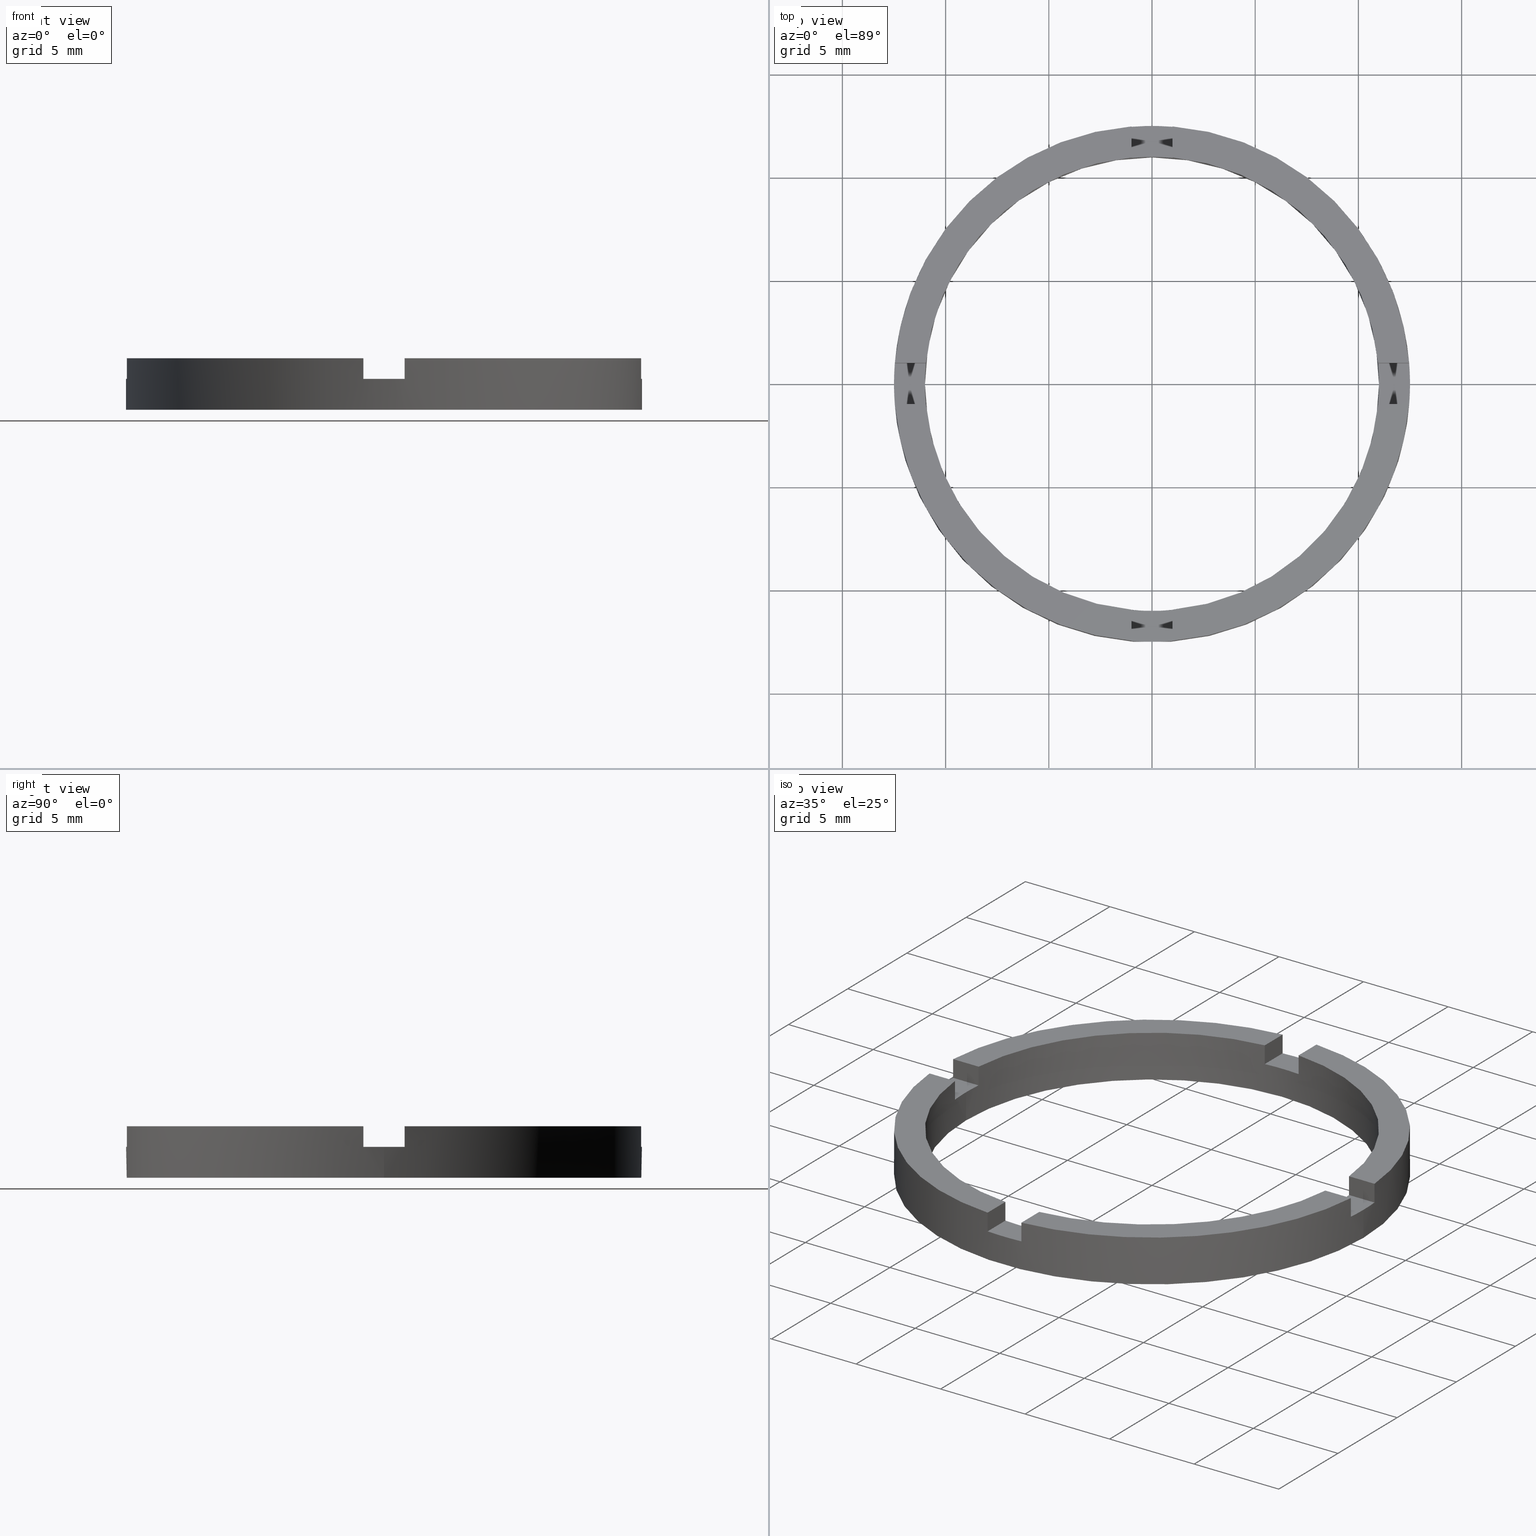
[diagram: canonical four-view strip — front | top / right | iso, engineering-drawing reading convention]
A machine part, canonical four-view strip (front | top / right | iso — engineering-drawing reading convention). The complete STEP part file that produces these views, byte-faithful:
ISO-10303-21;
HEADER;
FILE_DESCRIPTION (( 'STEP AP203' ),
    '1' );
FILE_NAME ('514056.step',
    '2024-12-26T02:33:21',
    ( 'MSI' ),
    ( '' ),
    'SwSTEP 2.0',
    'SolidWorks 2020',
    '' );
FILE_SCHEMA (( 'CONFIG_CONTROL_DESIGN' ));
ENDSEC;

DATA;
#1 = CARTESIAN_POINT ( 'NONE',  ( -1.000000000000024425, 10.95445115010331882, 2.500000000000000000 ) ) ;
#2 = ORIENTED_EDGE ( 'NONE', *, *, #82, .F. ) ;
#3 = CARTESIAN_POINT ( 'NONE',  ( 0.000000000000000000, 0.000000000000000000, 2.500000000000000000 ) ) ;
#4 = CARTESIAN_POINT ( 'NONE',  ( 0.000000000000000000, 0.000000000000000000, 2.500000000000000000 ) ) ;
#5 = EDGE_CURVE ( 'NONE', #246, #132, #645, .T. ) ;
#6 = DIRECTION ( 'NONE',  ( 0.000000000000000000, 0.000000000000000000, 1.000000000000000000 ) ) ;
#7 = DIRECTION ( 'NONE',  ( -0.000000000000000000, -0.000000000000000000, -1.000000000000000000 ) ) ;
#8 = ORIENTED_EDGE ( 'NONE', *, *, #606, .F. ) ;
#9 = DIRECTION ( 'NONE',  ( 1.000000000000000000, 1.734723475976807341E-16, -0.000000000000000000 ) ) ;
#10 = AXIS2_PLACEMENT_3D ( 'NONE', #777, #380, #285 ) ;
#11 = CARTESIAN_POINT ( 'NONE',  ( -12.50000000000000000, 0.000000000000000000, 0.000000000000000000 ) ) ;
#12 =( NAMED_UNIT ( * ) PLANE_ANGLE_UNIT ( ) SI_UNIT ( $, .RADIAN. ) );
#13 = PLANE ( 'NONE',  #253 ) ;
#14 = LINE ( 'NONE', #1, #542 ) ;
#15 = PERSON_AND_ORGANIZATION_ROLE ( 'classification_officer' ) ;
#16 = CARTESIAN_POINT ( 'NONE',  ( -2.500000000000186073, -1.000000000000020428, 2.500000000000000000 ) ) ;
#17 = VECTOR ( 'NONE', #420, 1000.000000000000000 ) ;
#18 = CARTESIAN_POINT ( 'NONE',  ( 0.000000000000000000, 0.000000000000000000, 0.000000000000000000 ) ) ;
#19 = EDGE_CURVE ( 'NONE', #520, #740, #130, .T. ) ;
#20 = VECTOR ( 'NONE', #511, 1000.000000000000000 ) ;
#21 = EDGE_CURVE ( 'NONE', #759, #750, #149, .T. ) ;
#22 = LINE ( 'NONE', #249, #276 ) ;
#23 = AXIS2_PLACEMENT_3D ( 'NONE', #730, #50, #550 ) ;
#24 = DIRECTION ( 'NONE',  ( 1.000000000000000000, 0.000000000000000000, 0.000000000000000000 ) ) ;
#25 = APPROVAL_PERSON_ORGANIZATION ( #293, #767, #722 ) ;
#26 = EDGE_CURVE ( 'NONE', #119, #252, #664, .T. ) ;
#27 = VECTOR ( 'NONE', #583, 1000.000000000000000 ) ;
#28 = ADVANCED_FACE ( 'NONE', ( #436 ), #318, .F. ) ;
#29 = DIRECTION ( 'NONE',  ( 1.000000000000000000, 0.000000000000000000, 0.000000000000000000 ) ) ;
#30 = DIRECTION ( 'NONE',  ( 1.000000000000000000, 0.000000000000000000, 0.000000000000000000 ) ) ;
#31 = VECTOR ( 'NONE', #358, 1000.000000000000000 ) ;
#32 = LINE ( 'NONE', #299, #31 ) ;
#33 = AXIS2_PLACEMENT_3D ( 'NONE', #329, #77, #423 ) ;
#34 = DIRECTION ( 'NONE',  ( 0.000000000000000000, 0.000000000000000000, 1.000000000000000000 ) ) ;
#35 = DIRECTION ( 'NONE',  ( 0.000000000000000000, 0.000000000000000000, 1.000000000000000000 ) ) ;
#36 = MANIFOLD_SOLID_BREP ( '�г�-����1', #209 ) ;
#37 = DIRECTION ( 'NONE',  ( 0.000000000000000000, 0.000000000000000000, 1.000000000000000000 ) ) ;
#38 = CC_DESIGN_SECURITY_CLASSIFICATION ( #343, ( #618 ) ) ;
#39 = DIRECTION ( 'NONE',  ( -1.000000000000000000, 0.000000000000000000, 0.000000000000000000 ) ) ;
#40 = CARTESIAN_POINT ( 'NONE',  ( 12.45993579437712739, 0.9999999999998402389, 1.500000000000000000 ) ) ;
#41 = CARTESIAN_POINT ( 'NONE',  ( 0.000000000000000000, 0.000000000000000000, 1.500000000000000000 ) ) ;
#42 = AXIS2_PLACEMENT_3D ( 'NONE', #4, #592, #424 ) ;
#43 = AXIS2_PLACEMENT_3D ( 'NONE', #85, #591, #332 ) ;
#44 = DESIGN_CONTEXT ( 'detailed design', #594, 'design' ) ;
#45 = DIRECTION ( 'NONE',  ( 0.000000000000000000, 0.000000000000000000, 1.000000000000000000 ) ) ;
#46 = EDGE_CURVE ( 'NONE', #138, #360, #118, .T. ) ;
#47 = CARTESIAN_POINT ( 'NONE',  ( -11.00000000000000000, 0.000000000000000000, 0.000000000000000000 ) ) ;
#48 = DIRECTION ( 'NONE',  ( -0.000000000000000000, -0.000000000000000000, -1.000000000000000000 ) ) ;
#49 = AXIS2_PLACEMENT_3D ( 'NONE', #605, #762, #29 ) ;
#50 = DIRECTION ( 'NONE',  ( 0.000000000000000000, 0.000000000000000000, 1.000000000000000000 ) ) ;
#51 = PERSON_AND_ORGANIZATION_ROLE ( 'creator' ) ;
#52 = CARTESIAN_POINT ( 'NONE',  ( 2.499999999999998668, -1.000000000000160316, 1.500000000000000000 ) ) ;
#53 = DIRECTION ( 'NONE',  ( 0.000000000000000000, 0.000000000000000000, 1.000000000000000000 ) ) ;
#54 = DATE_TIME_ROLE ( 'classification_date' ) ;
#55 = AXIS2_PLACEMENT_3D ( 'NONE', #18, #91, #516 ) ;
#56 = DIRECTION ( 'NONE',  ( 0.000000000000000000, 0.000000000000000000, 1.000000000000000000 ) ) ;
#57 = EDGE_CURVE ( 'NONE', #119, #669, #416, .T. ) ;
#58 = EDGE_CURVE ( 'NONE', #246, #746, #431, .T. ) ;
#59 = CARTESIAN_POINT ( 'NONE',  ( 0.9999999999999754641, 12.45993579437711674, 2.500000000000000000 ) ) ;
#60 = CC_DESIGN_APPROVAL ( #300, ( #343 ) ) ;
#61 = AXIS2_PLACEMENT_3D ( 'NONE', #475, #162, #172 ) ;
#62 = AXIS2_PLACEMENT_3D ( 'NONE', #179, #579, #402 ) ;
#63 = DIRECTION ( 'NONE',  ( 1.000000000000000000, 0.000000000000000000, 0.000000000000000000 ) ) ;
#64 = PLANE ( 'NONE',  #10 ) ;
#65 = DIRECTION ( 'NONE',  ( 0.000000000000000000, 1.000000000000000000, 0.000000000000000000 ) ) ;
#66 = CARTESIAN_POINT ( 'NONE',  ( -10.95445115010331882, -1.000000000000021982, 2.500000000000000000 ) ) ;
#67 = ADVANCED_FACE ( 'NONE', ( #678 ), #390, .F. ) ;
#68 = AXIS2_PLACEMENT_3D ( 'NONE', #353, #259, #508 ) ;
#69 = CARTESIAN_POINT ( 'NONE',  ( -11.00000000000000000, 0.000000000000000000, 2.500000000000000000 ) ) ;
#70 = CARTESIAN_POINT ( 'NONE',  ( 10.95445115010333659, 0.9999999999998402389, 2.500000000000000000 ) ) ;
#71 = DIRECTION ( 'NONE',  ( 1.000000000000000000, 1.734723475976807341E-16, 0.000000000000000000 ) ) ;
#72 = ADVANCED_FACE ( 'NONE', ( #146 ), #156, .T. ) ;
#73 = DIRECTION ( 'NONE',  ( -0.000000000000000000, -1.000000000000000000, -0.000000000000000000 ) ) ;
#74 = DIRECTION ( 'NONE',  ( -1.000000000000000000, 0.000000000000000000, 0.000000000000000000 ) ) ;
#75 = DIRECTION ( 'NONE',  ( 1.000000000000000000, 0.000000000000000000, 0.000000000000000000 ) ) ;
#76 = DIRECTION ( 'NONE',  ( -0.000000000000000000, -0.000000000000000000, -1.000000000000000000 ) ) ;
#77 = DIRECTION ( 'NONE',  ( -4.336808689942018352E-17, 1.000000000000000000, 0.000000000000000000 ) ) ;
#78 = DIRECTION ( 'NONE',  ( 0.000000000000000000, -0.000000000000000000, 1.000000000000000000 ) ) ;
#79 = CARTESIAN_POINT ( 'NONE',  ( 2.499999999999998668, 0.9999999999998397948, 2.500000000000000000 ) ) ;
#80 = DIRECTION ( 'NONE',  ( 0.000000000000000000, 0.000000000000000000, 1.000000000000000000 ) ) ;
#81 = CARTESIAN_POINT ( 'NONE',  ( 0.9999999999998352429, -2.500000000000182521, 1.500000000000000000 ) ) ;
#82 = EDGE_CURVE ( 'NONE', #669, #405, #154, .T. ) ;
#83 = EDGE_CURVE ( 'NONE', #480, #98, #158, .T. ) ;
#84 = CC_DESIGN_PERSON_AND_ORGANIZATION_ASSIGNMENT ( #551, #243, ( #315 ) ) ;
#85 = CARTESIAN_POINT ( 'NONE',  ( 0.000000000000000000, 0.000000000000000000, 1.500000000000000000 ) ) ;
#86 = AXIS2_PLACEMENT_3D ( 'NONE', #239, #324, #725 ) ;
#87 = DIRECTION ( 'NONE',  ( 4.336808689942018352E-17, -1.000000000000000000, 0.000000000000000000 ) ) ;
#88 = FACE_OUTER_BOUND ( 'NONE', #513, .T. ) ;
#89 = EDGE_CURVE ( 'NONE', #410, #257, #163, .T. ) ;
#90 = APPROVAL_STATUS ( 'not_yet_approved' ) ;
#91 = DIRECTION ( 'NONE',  ( 0.000000000000000000, 0.000000000000000000, 1.000000000000000000 ) ) ;
#92 = APPROVAL_DATE_TIME ( #399, #300 ) ;
#93 = LINE ( 'NONE', #588, #375 ) ;
#94 = EDGE_LOOP ( 'NONE', ( #729, #125, #677, #663 ) ) ;
#95 = CIRCLE ( 'NONE', #403, 12.50000000000000000 ) ;
#96 = EDGE_LOOP ( 'NONE', ( #406, #379, #250, #437, #656, #211, #682, #155, #517, #768, #736, #435 ) ) ;
#97 = APPROVAL_PERSON_ORGANIZATION ( #644, #300, #540 ) ;
#98 = VERTEX_POINT ( 'NONE', #587 ) ;
#99 = LOCAL_TIME ( 10, 33, 21.00000000000000000, #622 ) ;
#100 = ORIENTED_EDGE ( 'NONE', *, *, #430, .F. ) ;
#101 = VECTOR ( 'NONE', #652, 1000.000000000000000 ) ;
#102 = VERTEX_POINT ( 'NONE', #169 ) ;
#103 = EDGE_CURVE ( 'NONE', #98, #219, #648, .T. ) ;
#104 = COORDINATED_UNIVERSAL_TIME_OFFSET ( 8, 0, .AHEAD. ) ;
#105 = ORIENTED_EDGE ( 'NONE', *, *, #463, .F. ) ;
#106 = APPROVAL_DATE_TIME ( #654, #767 ) ;
#107 = ORIENTED_EDGE ( 'NONE', *, *, #326, .T. ) ;
#108 = ORIENTED_EDGE ( 'NONE', *, *, #21, .F. ) ;
#109 = CALENDAR_DATE ( 2024, 26, 12 ) ;
#110 = CIRCLE ( 'NONE', #152, 12.50000000000000000 ) ;
#111 = VERTEX_POINT ( 'NONE', #40 ) ;
#112 = PERSON_AND_ORGANIZATION ( #570, #289 ) ;
#113 = FACE_OUTER_BOUND ( 'NONE', #123, .T. ) ;
#114 = ORIENTED_EDGE ( 'NONE', *, *, #532, .F. ) ;
#115 = LOCAL_TIME ( 10, 33, 21.00000000000000000, #389 ) ;
#116 = FACE_OUTER_BOUND ( 'NONE', #753, .T. ) ;
#117 = CALENDAR_DATE ( 2024, 26, 12 ) ;
#118 = CIRCLE ( 'NONE', #674, 11.00000000000000000 ) ;
#119 = VERTEX_POINT ( 'NONE', #223 ) ;
#120 = LINE ( 'NONE', #533, #662 ) ;
#121 = ORIENTED_EDGE ( 'NONE', *, *, #704, .T. ) ;
#122 = CARTESIAN_POINT ( 'NONE',  ( -2.500000000000186073, -1.000000000000020428, 1.500000000000000000 ) ) ;
#123 = EDGE_LOOP ( 'NONE', ( #681, #432, #426, #108, #738, #232 ) ) ;
#124 = VERTEX_POINT ( 'NONE', #70 ) ;
#125 = ORIENTED_EDGE ( 'NONE', *, *, #700, .T. ) ;
#126 = CARTESIAN_POINT ( 'NONE',  ( 0.000000000000000000, 0.000000000000000000, 1.500000000000000000 ) ) ;
#127 = DIRECTION ( 'NONE',  ( -0.000000000000000000, -0.000000000000000000, -1.000000000000000000 ) ) ;
#128 = ORIENTED_EDGE ( 'NONE', *, *, #732, .T. ) ;
#129 = EDGE_LOOP ( 'NONE', ( #438, #481, #151, #114 ) ) ;
#130 = CIRCLE ( 'NONE', #560, 12.50000000000000000 ) ;
#131 = ADVANCED_FACE ( 'NONE', ( #113 ), #611, .T. ) ;
#132 = VERTEX_POINT ( 'NONE', #717 ) ;
#133 = ADVANCED_FACE ( 'NONE', ( #394, #705 ), #505, .F. ) ;
#134 = DIRECTION ( 'NONE',  ( 0.000000000000000000, 0.000000000000000000, 1.000000000000000000 ) ) ;
#135 = DIRECTION ( 'NONE',  ( 1.000000000000000000, 0.000000000000000000, 0.000000000000000000 ) ) ;
#136 = ORIENTED_EDGE ( 'NONE', *, *, #633, .F. ) ;
#137 = ORIENTED_EDGE ( 'NONE', *, *, #509, .T. ) ;
#138 = VERTEX_POINT ( 'NONE', #47 ) ;
#139 = ORIENTED_EDGE ( 'NONE', *, *, #144, .T. ) ;
#140 = EDGE_CURVE ( 'NONE', #221, #666, #441, .T. ) ;
#141 = ORIENTED_EDGE ( 'NONE', *, *, #57, .T. ) ;
#142 = LINE ( 'NONE', #387, #189 ) ;
#143 = ORIENTED_EDGE ( 'NONE', *, *, #499, .F. ) ;
#144 = EDGE_CURVE ( 'NONE', #480, #234, #701, .T. ) ;
#145 = CARTESIAN_POINT ( 'NONE',  ( 0.9999999999999754641, 10.95445115010332415, 2.500000000000000000 ) ) ;
#146 = FACE_OUTER_BOUND ( 'NONE', #241, .T. ) ;
#147 = ORIENTED_EDGE ( 'NONE', *, *, #580, .T. ) ;
#148 = ORIENTED_EDGE ( 'NONE', *, *, #700, .F. ) ;
#149 = CIRCLE ( 'NONE', #247, 11.00000000000000000 ) ;
#150 = LINE ( 'NONE', #607, #563 ) ;
#151 = ORIENTED_EDGE ( 'NONE', *, *, #193, .F. ) ;
#152 = AXIS2_PLACEMENT_3D ( 'NONE', #718, #37, #135 ) ;
#153 =( GEOMETRIC_REPRESENTATION_CONTEXT ( 3 ) GLOBAL_UNCERTAINTY_ASSIGNED_CONTEXT ( ( #195 ) ) GLOBAL_UNIT_ASSIGNED_CONTEXT ( ( #538, #12, #577 ) ) REPRESENTATION_CONTEXT ( 'NONE', 'WORKASPACE' ) );
#154 = LINE ( 'NONE', #386, #686 ) ;
#155 = ORIENTED_EDGE ( 'NONE', *, *, #19, .F. ) ;
#156 = PLANE ( 'NONE',  #476 ) ;
#157 = CARTESIAN_POINT ( 'NONE',  ( 0.000000000000000000, 0.000000000000000000, 0.000000000000000000 ) ) ;
#158 = LINE ( 'NONE', #238, #689 ) ;
#159 = LINE ( 'NONE', #541, #447 ) ;
#160 = ORIENTED_EDGE ( 'NONE', *, *, #26, .T. ) ;
#161 = EDGE_CURVE ( 'NONE', #248, #405, #177, .T. ) ;
#162 = DIRECTION ( 'NONE',  ( 0.000000000000000000, 0.000000000000000000, 1.000000000000000000 ) ) ;
#163 = CIRCLE ( 'NONE', #518, 12.50000000000000000 ) ;
#164 = FACE_OUTER_BOUND ( 'NONE', #214, .T. ) ;
#165 = VECTOR ( 'NONE', #612, 1000.000000000000000 ) ;
#166 = DIRECTION ( 'NONE',  ( -1.000000000000000000, 0.000000000000000000, 0.000000000000000000 ) ) ;
#167 = VECTOR ( 'NONE', #765, 1000.000000000000000 ) ;
#168 = CARTESIAN_POINT ( 'NONE',  ( -1.000000000000163647, -10.95445115010330639, 2.500000000000000000 ) ) ;
#169 = CARTESIAN_POINT ( 'NONE',  ( 0.9999999999998363531, -12.45993579437712739, 1.500000000000000000 ) ) ;
#170 = DIRECTION ( 'NONE',  ( 1.000000000000000000, 0.000000000000000000, 0.000000000000000000 ) ) ;
#171 = LINE ( 'NONE', #215, #186 ) ;
#172 = DIRECTION ( 'NONE',  ( 1.000000000000000000, 0.000000000000000000, 0.000000000000000000 ) ) ;
#173 = FACE_OUTER_BOUND ( 'NONE', #469, .T. ) ;
#174 = LINE ( 'NONE', #574, #165 ) ;
#175 = LINE ( 'NONE', #695, #167 ) ;
#176 = DIRECTION ( 'NONE',  ( 1.000000000000000000, 0.000000000000000000, 0.000000000000000000 ) ) ;
#177 = LINE ( 'NONE', #335, #709 ) ;
#178 = CARTESIAN_POINT ( 'NONE',  ( 0.000000000000000000, 0.000000000000000000, 0.000000000000000000 ) ) ;
#179 = CARTESIAN_POINT ( 'NONE',  ( 0.000000000000000000, 0.000000000000000000, 2.500000000000000000 ) ) ;
#180 = VECTOR ( 'NONE', #585, 1000.000000000000000 ) ;
#181 = EDGE_CURVE ( 'NONE', #254, #507, #694, .T. ) ;
#182 = VECTOR ( 'NONE', #301, 1000.000000000000000 ) ;
#183 = AXIS2_PLACEMENT_3D ( 'NONE', #536, #303, #496 ) ;
#184 = LINE ( 'NONE', #601, #451 ) ;
#185 = CYLINDRICAL_SURFACE ( 'NONE', #504, 11.00000000000000000 ) ;
#186 = VECTOR ( 'NONE', #277, 1000.000000000000000 ) ;
#187 = DIRECTION ( 'NONE',  ( -0.000000000000000000, -0.000000000000000000, -1.000000000000000000 ) ) ;
#188 = CARTESIAN_POINT ( 'NONE',  ( -12.45993579437711496, 0.9999999999999779066, 2.500000000000000000 ) ) ;
#189 = VECTOR ( 'NONE', #7, 1000.000000000000000 ) ;
#190 = DIRECTION ( 'NONE',  ( 0.000000000000000000, 0.000000000000000000, 1.000000000000000000 ) ) ;
#191 = VECTOR ( 'NONE', #446, 1000.000000000000000 ) ;
#192 = APPROVAL_STATUS ( 'not_yet_approved' ) ;
#193 = EDGE_CURVE ( 'NONE', #731, #641, #450, .T. ) ;
#194 = LINE ( 'NONE', #271, #712 ) ;
#195 = UNCERTAINTY_MEASURE_WITH_UNIT (LENGTH_MEASURE( 1.000000000000000082E-05 ), #538, 'distance_accuracy_value', 'NONE');
#196 = CC_DESIGN_PERSON_AND_ORGANIZATION_ASSIGNMENT ( #630, #739, ( #618 ) ) ;
#197 = CC_DESIGN_DATE_AND_TIME_ASSIGNMENT ( #627, #54, ( #343 ) ) ;
#198 = VECTOR ( 'NONE', #327, 1000.000000000000000 ) ;
#199 = AXIS2_PLACEMENT_3D ( 'NONE', #781, #374, #474 ) ;
#200 = VECTOR ( 'NONE', #590, 1000.000000000000000 ) ;
#201 = CIRCLE ( 'NONE', #350, 11.00000000000000000 ) ;
#202 = PLANE ( 'NONE',  #544 ) ;
#203 = ORIENTED_EDGE ( 'NONE', *, *, #46, .T. ) ;
#204 = ORIENTED_EDGE ( 'NONE', *, *, #415, .T. ) ;
#205 = EDGE_CURVE ( 'NONE', #666, #138, #706, .T. ) ;
#206 = ORIENTED_EDGE ( 'NONE', *, *, #589, .T. ) ;
#207 = DIRECTION ( 'NONE',  ( -0.000000000000000000, -0.000000000000000000, -1.000000000000000000 ) ) ;
#208 = EDGE_CURVE ( 'NONE', #246, #417, #184, .T. ) ;
#209 = CLOSED_SHELL ( 'NONE', ( #572, #703, #72, #217, #288, #608, #133, #569, #67, #227, #325, #320, #466, #603, #764, #28, #331, #131, #233, #566, #362 ) ) ;
#210 = EDGE_LOOP ( 'NONE', ( #128, #488, #136, #754 ) ) ;
#211 = ORIENTED_EDGE ( 'NONE', *, *, #598, .F. ) ;
#212 = CARTESIAN_POINT ( 'NONE',  ( -12.45993579437711496, 0.9999999999999779066, 1.500000000000000000 ) ) ;
#213 = ORIENTED_EDGE ( 'NONE', *, *, #455, .T. ) ;
#214 = EDGE_LOOP ( 'NONE', ( #2, #218, #639, #204 ) ) ;
#215 = CARTESIAN_POINT ( 'NONE',  ( -12.50000000000000000, 0.000000000000000000, 2.500000000000000000 ) ) ;
#216 = DIRECTION ( 'NONE',  ( 0.000000000000000000, -0.000000000000000000, 1.000000000000000000 ) ) ;
#217 = ADVANCED_FACE ( 'NONE', ( #164 ), #64, .T. ) ;
#218 = ORIENTED_EDGE ( 'NONE', *, *, #455, .F. ) ;
#219 = VERTEX_POINT ( 'NONE', #610 ) ;
#220 = CARTESIAN_POINT ( 'NONE',  ( 0.9999999999998363531, -10.95445115010333659, 2.500000000000000000 ) ) ;
#221 = VERTEX_POINT ( 'NONE', #477 ) ;
#222 = ORIENTED_EDGE ( 'NONE', *, *, #208, .T. ) ;
#223 = CARTESIAN_POINT ( 'NONE',  ( 0.9999999999999754641, 10.95445115010332415, 1.500000000000000000 ) ) ;
#224 = CARTESIAN_POINT ( 'NONE',  ( 2.499999999999998668, -1.000000000000160316, 1.500000000000000000 ) ) ;
#225 = AXIS2_PLACEMENT_3D ( 'NONE', #721, #6, #176 ) ;
#226 = VERTEX_POINT ( 'NONE', #220 ) ;
#227 = ADVANCED_FACE ( 'NONE', ( #442 ), #395, .F. ) ;
#228 = ORIENTED_EDGE ( 'NONE', *, *, #46, .F. ) ;
#229 = ORIENTED_EDGE ( 'NONE', *, *, #279, .T. ) ;
#230 = CARTESIAN_POINT ( 'NONE',  ( 0.000000000000000000, 0.000000000000000000, 2.500000000000000000 ) ) ;
#231 = CARTESIAN_POINT ( 'NONE',  ( 12.50000000000000000, 1.530808498934191521E-15, 0.000000000000000000 ) ) ;
#232 = ORIENTED_EDGE ( 'NONE', *, *, #688, .T. ) ;
#233 = ADVANCED_FACE ( 'NONE', ( #693 ), #280, .F. ) ;
#234 = VERTEX_POINT ( 'NONE', #323 ) ;
#235 = CARTESIAN_POINT ( 'NONE',  ( 10.95445115010333659, 0.9999999999998402389, 1.500000000000000000 ) ) ;
#236 = ORIENTED_EDGE ( 'NONE', *, *, #415, .F. ) ;
#237 = EDGE_CURVE ( 'NONE', #257, #494, #171, .T. ) ;
#238 = CARTESIAN_POINT ( 'NONE',  ( -1.000000000000024425, 2.500000000000002220, 2.500000000000000000 ) ) ;
#239 = CARTESIAN_POINT ( 'NONE',  ( 0.000000000000000000, 0.000000000000000000, 1.500000000000000000 ) ) ;
#240 = CC_DESIGN_PERSON_AND_ORGANIZATION_ASSIGNMENT ( #640, #15, ( #343 ) ) ;
#241 = EDGE_LOOP ( 'NONE', ( #519, #487, #676, #484 ) ) ;
#242 = AXIS2_PLACEMENT_3D ( 'NONE', #251, #567, #321 ) ;
#243 = PERSON_AND_ORGANIZATION_ROLE ( 'design_owner' ) ;
#244 = DIRECTION ( 'NONE',  ( 0.000000000000000000, 0.000000000000000000, 1.000000000000000000 ) ) ;
#245 = PLANE ( 'NONE',  #62 ) ;
#246 = VERTEX_POINT ( 'NONE', #367 ) ;
#247 = AXIS2_PLACEMENT_3D ( 'NONE', #126, #322, #24 ) ;
#248 = VERTEX_POINT ( 'NONE', #319 ) ;
#249 = CARTESIAN_POINT ( 'NONE',  ( 10.95445115010333659, 0.9999999999998402389, 2.500000000000000000 ) ) ;
#250 = ORIENTED_EDGE ( 'NONE', *, *, #181, .T. ) ;
#251 = CARTESIAN_POINT ( 'NONE',  ( -1.000000000000164757, -2.500000000000182521, 1.500000000000000000 ) ) ;
#252 = VERTEX_POINT ( 'NONE', #472 ) ;
#253 = AXIS2_PLACEMENT_3D ( 'NONE', #52, #87, #312 ) ;
#254 = VERTEX_POINT ( 'NONE', #355 ) ;
#255 = DIRECTION ( 'NONE',  ( 1.000000000000000000, 0.000000000000000000, 0.000000000000000000 ) ) ;
#256 = CARTESIAN_POINT ( 'NONE',  ( 12.45993579437710075, -1.000000000000159872, 2.500000000000000000 ) ) ;
#257 = VERTEX_POINT ( 'NONE', #602 ) ;
#258 = EDGE_CURVE ( 'NONE', #746, #740, #175, .T. ) ;
#259 = DIRECTION ( 'NONE',  ( -1.734723475976807341E-16, 1.000000000000000000, 0.000000000000000000 ) ) ;
#260 = ORIENTED_EDGE ( 'NONE', *, *, #58, .T. ) ;
#261 = CARTESIAN_POINT ( 'NONE',  ( -1.000000000000163647, -12.45993579437710075, 2.500000000000000000 ) ) ;
#262 = CARTESIAN_POINT ( 'NONE',  ( 0.000000000000000000, 0.000000000000000000, 0.000000000000000000 ) ) ;
#263 = ORIENTED_EDGE ( 'NONE', *, *, #258, .T. ) ;
#264 = CARTESIAN_POINT ( 'NONE',  ( -10.95445115010331882, -1.000000000000021982, 2.500000000000000000 ) ) ;
#265 = ORIENTED_EDGE ( 'NONE', *, *, #89, .F. ) ;
#266 = CARTESIAN_POINT ( 'NONE',  ( 0.000000000000000000, 0.000000000000000000, 1.500000000000000000 ) ) ;
#267 = AXIS2_PLACEMENT_3D ( 'NONE', #576, #166, #713 ) ;
#268 = PLANE ( 'NONE',  #366 ) ;
#269 = ORIENTED_EDGE ( 'NONE', *, *, #430, .T. ) ;
#270 = EDGE_CURVE ( 'NONE', #673, #641, #454, .T. ) ;
#271 = CARTESIAN_POINT ( 'NONE',  ( 0.9999999999998352429, -2.500000000000182521, 2.500000000000000000 ) ) ;
#272 = APPROVAL ( #333, 'δָ��' ) ;
#273 = CARTESIAN_POINT ( 'NONE',  ( 0.000000000000000000, 0.000000000000000000, 1.500000000000000000 ) ) ;
#274 = AXIS2_PLACEMENT_3D ( 'NONE', #351, #710, #692 ) ;
#275 = VECTOR ( 'NONE', #493, 1000.000000000000000 ) ;
#276 = VECTOR ( 'NONE', #187, 1000.000000000000000 ) ;
#277 = DIRECTION ( 'NONE',  ( -0.000000000000000000, -0.000000000000000000, -1.000000000000000000 ) ) ;
#278 = CYLINDRICAL_SURFACE ( 'NONE', #782, 12.50000000000000000 ) ;
#279 = EDGE_CURVE ( 'NONE', #623, #507, #691, .T. ) ;
#280 = PLANE ( 'NONE',  #267 ) ;
#281 = DIRECTION ( 'NONE',  ( 0.000000000000000000, 0.000000000000000000, 1.000000000000000000 ) ) ;
#282 = PLANE ( 'NONE',  #527 ) ;
#283 = LINE ( 'NONE', #307, #20 ) ;
#284 = CARTESIAN_POINT ( 'NONE',  ( -2.500000000000186073, 0.9999999999999796829, 2.500000000000000000 ) ) ;
#285 = DIRECTION ( 'NONE',  ( 1.000000000000000000, 0.000000000000000000, -0.000000000000000000 ) ) ;
#286 = EDGE_CURVE ( 'NONE', #623, #102, #445, .T. ) ;
#287 = FACE_OUTER_BOUND ( 'NONE', #370, .T. ) ;
#288 = ADVANCED_FACE ( 'NONE', ( #173 ), #268, .T. ) ;
#289 = ORGANIZATION ( 'δָ��', 'δָ��', '' ) ;
#290 = DIRECTION ( 'NONE',  ( 0.000000000000000000, 0.000000000000000000, 1.000000000000000000 ) ) ;
#291 = LINE ( 'NONE', #295, #275 ) ;
#292 = DIRECTION ( 'NONE',  ( 1.000000000000000000, 0.000000000000000000, 0.000000000000000000 ) ) ;
#293 = PERSON_AND_ORGANIZATION ( #570, #289 ) ;
#294 = LINE ( 'NONE', #224, #558 ) ;
#295 = CARTESIAN_POINT ( 'NONE',  ( 11.00000000000000000, 1.347111479062088405E-15, 2.500000000000000000 ) ) ;
#296 = DIRECTION ( 'NONE',  ( 1.000000000000000000, 0.000000000000000000, 0.000000000000000000 ) ) ;
#297 = FACE_OUTER_BOUND ( 'NONE', #490, .T. ) ;
#298 = APPLICATION_PROTOCOL_DEFINITION ( 'international standard', 'config_control_design', 1994, #594 ) ;
#299 = CARTESIAN_POINT ( 'NONE',  ( 2.499999999999998668, 0.9999999999998397948, 1.500000000000000000 ) ) ;
#300 = APPROVAL ( #90, 'δָ��' ) ;
#301 = DIRECTION ( 'NONE',  ( -0.000000000000000000, -0.000000000000000000, -1.000000000000000000 ) ) ;
#302 = DIRECTION ( 'NONE',  ( -0.000000000000000000, -0.000000000000000000, -1.000000000000000000 ) ) ;
#303 = DIRECTION ( 'NONE',  ( -0.000000000000000000, -0.000000000000000000, -1.000000000000000000 ) ) ;
#304 = CARTESIAN_POINT ( 'NONE',  ( 10.95445115010330639, -1.000000000000159872, 2.500000000000000000 ) ) ;
#305 = ADVANCED_BREP_SHAPE_REPRESENTATION ( '514056', ( #36, #737 ), #153 ) ;
#306 = EDGE_CURVE ( 'NONE', #512, #507, #697, .T. ) ;
#307 = CARTESIAN_POINT ( 'NONE',  ( 0.9999999999999754641, 2.500000000000002220, 1.500000000000000000 ) ) ;
#308 = CARTESIAN_POINT ( 'NONE',  ( 0.9999999999998352429, -2.500000000000182521, 1.500000000000000000 ) ) ;
#309 = CARTESIAN_POINT ( 'NONE',  ( 0.000000000000000000, 0.000000000000000000, 1.500000000000000000 ) ) ;
#310 = APPROVAL_ROLE ( '' ) ;
#311 = EDGE_CURVE ( 'NONE', #520, #673, #720, .T. ) ;
#312 = DIRECTION ( 'NONE',  ( 1.000000000000000000, 4.336808689942018352E-17, 0.000000000000000000 ) ) ;
#313 = EDGE_CURVE ( 'NONE', #360, #138, #458, .T. ) ;
#314 = DIRECTION ( 'NONE',  ( 1.000000000000000000, 0.000000000000000000, -0.000000000000000000 ) ) ;
#315 = PRODUCT ( '514056', '514056', '', ( #728 ) ) ;
#316 = AXIS2_PLACEMENT_3D ( 'NONE', #711, #780, #411 ) ;
#317 = PLANE ( 'NONE',  #68 ) ;
#318 = PLANE ( 'NONE',  #33 ) ;
#319 = CARTESIAN_POINT ( 'NONE',  ( 0.9999999999999754641, 12.45993579437711674, 1.500000000000000000 ) ) ;
#320 = ADVANCED_FACE ( 'NONE', ( #470 ), #202, .T. ) ;
#321 = DIRECTION ( 'NONE',  ( 1.301042606982605567E-16, -1.000000000000000000, 0.000000000000000000 ) ) ;
#322 = DIRECTION ( 'NONE',  ( 0.000000000000000000, 0.000000000000000000, 1.000000000000000000 ) ) ;
#323 = CARTESIAN_POINT ( 'NONE',  ( -1.000000000000024425, 12.45993579437711141, 1.500000000000000000 ) ) ;
#324 = DIRECTION ( 'NONE',  ( -0.000000000000000000, 0.000000000000000000, 1.000000000000000000 ) ) ;
#325 = ADVANCED_FACE ( 'NONE', ( #462 ), #317, .F. ) ;
#326 = EDGE_CURVE ( 'NONE', #234, #252, #460, .T. ) ;
#327 = DIRECTION ( 'NONE',  ( -1.000000000000000000, -1.734723475976807341E-16, 0.000000000000000000 ) ) ;
#328 = DIRECTION ( 'NONE',  ( -0.000000000000000000, -0.000000000000000000, -1.000000000000000000 ) ) ;
#329 = CARTESIAN_POINT ( 'NONE',  ( 2.499999999999998668, 0.9999999999998397948, 1.500000000000000000 ) ) ;
#330 = DIRECTION ( 'NONE',  ( 1.000000000000000000, 4.336808689942018352E-17, 0.000000000000000000 ) ) ;
#331 = ADVANCED_FACE ( 'NONE', ( #714 ), #13, .F. ) ;
#332 = DIRECTION ( 'NONE',  ( 1.000000000000000000, 0.000000000000000000, 0.000000000000000000 ) ) ;
#333 = APPROVAL_STATUS ( 'not_yet_approved' ) ;
#334 = CARTESIAN_POINT ( 'NONE',  ( 12.50000000000000000, 1.530808498934191521E-15, 1.500000000000000000 ) ) ;
#335 = CARTESIAN_POINT ( 'NONE',  ( 0.9999999999999754641, 12.45993579437711674, 2.500000000000000000 ) ) ;
#336 = CARTESIAN_POINT ( 'NONE',  ( 0.000000000000000000, 0.000000000000000000, 2.500000000000000000 ) ) ;
#337 = AXIS2_PLACEMENT_3D ( 'NONE', #262, #80, #418 ) ;
#338 = CARTESIAN_POINT ( 'NONE',  ( 0.9999999999999754641, 10.95445115010332415, 2.500000000000000000 ) ) ;
#339 = CARTESIAN_POINT ( 'NONE',  ( -12.45993579437711141, -1.000000000000022204, 1.500000000000000000 ) ) ;
#340 = DIRECTION ( 'NONE',  ( 1.000000000000000000, 1.301042606982605567E-16, 0.000000000000000000 ) ) ;
#341 = AXIS2_PLACEMENT_3D ( 'NONE', #309, #553, #593 ) ;
#342 = DIRECTION ( 'NONE',  ( 0.000000000000000000, 0.000000000000000000, 1.000000000000000000 ) ) ;
#343 = SECURITY_CLASSIFICATION ( '', '', #408 ) ;
#344 = CARTESIAN_POINT ( 'NONE',  ( 0.000000000000000000, 0.000000000000000000, 2.500000000000000000 ) ) ;
#345 = AXIS2_PLACEMENT_3D ( 'NONE', #41, #78, #170 ) ;
#346 = DIRECTION ( 'NONE',  ( 1.000000000000000000, 0.000000000000000000, 0.000000000000000000 ) ) ;
#347 = AXIS2_PLACEMENT_3D ( 'NONE', #273, #216, #755 ) ;
#348 = EDGE_CURVE ( 'NONE', #778, #759, #201, .T. ) ;
#349 = CARTESIAN_POINT ( 'NONE',  ( 2.499999999999998668, -1.000000000000160316, 2.500000000000000000 ) ) ;
#350 = AXIS2_PLACEMENT_3D ( 'NONE', #613, #757, #292 ) ;
#351 = CARTESIAN_POINT ( 'NONE',  ( 0.000000000000000000, 0.000000000000000000, 1.500000000000000000 ) ) ;
#352 = EDGE_CURVE ( 'NONE', #623, #226, #194, .T. ) ;
#353 = CARTESIAN_POINT ( 'NONE',  ( -2.500000000000186073, 0.9999999999999796829, 1.500000000000000000 ) ) ;
#354 = PLANE ( 'NONE',  #274 ) ;
#355 = CARTESIAN_POINT ( 'NONE',  ( 12.45993579437710075, -1.000000000000159872, 1.500000000000000000 ) ) ;
#356 = APPROVAL_PERSON_ORGANIZATION ( #112, #272, #310 ) ;
#357 = CIRCLE ( 'NONE', #49, 11.00000000000000000 ) ;
#358 = DIRECTION ( 'NONE',  ( -1.000000000000000000, -4.336808689942018352E-17, -0.000000000000000000 ) ) ;
#359 = CIRCLE ( 'NONE', #61, 11.00000000000000000 ) ;
#360 = VERTEX_POINT ( 'NONE', #456 ) ;
#361 = CARTESIAN_POINT ( 'NONE',  ( -1.000000000000163647, -12.45993579437710075, 1.500000000000000000 ) ) ;
#362 = ADVANCED_FACE ( 'NONE', ( #726 ), #354, .T. ) ;
#363 = LOCAL_TIME ( 10, 33, 21.00000000000000000, #647 ) ;
#364 = LINE ( 'NONE', #308, #101 ) ;
#365 = ORIENTED_EDGE ( 'NONE', *, *, #208, .F. ) ;
#366 = AXIS2_PLACEMENT_3D ( 'NONE', #595, #671, #665 ) ;
#367 = CARTESIAN_POINT ( 'NONE',  ( -1.000000000000163647, -10.95445115010330639, 1.500000000000000000 ) ) ;
#368 = CALENDAR_DATE ( 2024, 26, 12 ) ;
#369 = LINE ( 'NONE', #468, #378 ) ;
#370 = EDGE_LOOP ( 'NONE', ( #658, #137, #434, #222 ) ) ;
#371 = PERSON_AND_ORGANIZATION ( #570, #289 ) ;
#372 = ORIENTED_EDGE ( 'NONE', *, *, #306, .F. ) ;
#373 = DIRECTION ( 'NONE',  ( 0.000000000000000000, 0.000000000000000000, 1.000000000000000000 ) ) ;
#374 = DIRECTION ( 'NONE',  ( -0.000000000000000000, -0.000000000000000000, -1.000000000000000000 ) ) ;
#375 = VECTOR ( 'NONE', #637, 1000.000000000000000 ) ;
#376 = ORIENTED_EDGE ( 'NONE', *, *, #313, .T. ) ;
#377 = CALENDAR_DATE ( 2024, 26, 12 ) ;
#378 = VECTOR ( 'NONE', #76, 1000.000000000000000 ) ;
#379 = ORIENTED_EDGE ( 'NONE', *, *, #685, .F. ) ;
#380 = DIRECTION ( 'NONE',  ( 0.000000000000000000, 0.000000000000000000, 1.000000000000000000 ) ) ;
#381 = DATE_AND_TIME ( #377, #634 ) ;
#382 = EDGE_LOOP ( 'NONE', ( #636, #105 ) ) ;
#383 = COORDINATED_UNIVERSAL_TIME_OFFSET ( 8, 0, .AHEAD. ) ;
#384 = ORIENTED_EDGE ( 'NONE', *, *, #26, .F. ) ;
#385 = EDGE_LOOP ( 'NONE', ( #495, #763, #760, #531 ) ) ;
#386 = CARTESIAN_POINT ( 'NONE',  ( 0.9999999999999754641, 2.500000000000002220, 2.500000000000000000 ) ) ;
#387 = CARTESIAN_POINT ( 'NONE',  ( 0.9999999999998363531, -10.95445115010333659, 2.500000000000000000 ) ) ;
#388 = EDGE_CURVE ( 'NONE', #417, #740, #459, .T. ) ;
#389 = COORDINATED_UNIVERSAL_TIME_OFFSET ( 8, 0, .AHEAD. ) ;
#390 = CYLINDRICAL_SURFACE ( 'NONE', #183, 11.00000000000000000 ) ;
#391 = ORIENTED_EDGE ( 'NONE', *, *, #140, .F. ) ;
#392 = EDGE_CURVE ( 'NONE', #219, #503, #464, .T. ) ;
#393 = APPROVAL_DATE_TIME ( #638, #272 ) ;
#394 = FACE_OUTER_BOUND ( 'NONE', #382, .T. ) ;
#395 = PLANE ( 'NONE',  #568 ) ;
#396 = CALENDAR_DATE ( 2024, 26, 12 ) ;
#397 = ORIENTED_EDGE ( 'NONE', *, *, #774, .F. ) ;
#398 = CC_DESIGN_DATE_AND_TIME_ASSIGNMENT ( #381, #486, ( #457 ) ) ;
#399 = DATE_AND_TIME ( #117, #115 ) ;
#400 = ORIENTED_EDGE ( 'NONE', *, *, #57, .F. ) ;
#401 = DIRECTION ( 'NONE',  ( 1.000000000000000000, 0.000000000000000000, 0.000000000000000000 ) ) ;
#402 = DIRECTION ( 'NONE',  ( 1.000000000000000000, 0.000000000000000000, -0.000000000000000000 ) ) ;
#403 = AXIS2_PLACEMENT_3D ( 'NONE', #619, #581, #719 ) ;
#404 = AXIS2_PLACEMENT_3D ( 'NONE', #584, #699, #296 ) ;
#405 = VERTEX_POINT ( 'NONE', #59 ) ;
#406 = ORIENTED_EDGE ( 'NONE', *, *, #453, .F. ) ;
#407 = ORIENTED_EDGE ( 'NONE', *, *, #696, .F. ) ;
#408 = SECURITY_CLASSIFICATION_LEVEL ( 'unclassified' ) ;
#409 = CIRCLE ( 'NONE', #42, 11.00000000000000000 ) ;
#410 = VERTEX_POINT ( 'NONE', #212 ) ;
#411 = DIRECTION ( 'NONE',  ( 1.000000000000000000, 0.000000000000000000, -0.000000000000000000 ) ) ;
#412 = CARTESIAN_POINT ( 'NONE',  ( 0.9999999999999754641, 2.500000000000002220, 1.500000000000000000 ) ) ;
#413 = ORIENTED_EDGE ( 'NONE', *, *, #775, .F. ) ;
#414 = ORIENTED_EDGE ( 'NONE', *, *, #161, .T. ) ;
#415 = EDGE_CURVE ( 'NONE', #690, #405, #670, .T. ) ;
#416 = LINE ( 'NONE', #338, #439 ) ;
#417 = VERTEX_POINT ( 'NONE', #361 ) ;
#418 = DIRECTION ( 'NONE',  ( 1.000000000000000000, 0.000000000000000000, -0.000000000000000000 ) ) ;
#419 = ORIENTED_EDGE ( 'NONE', *, *, #82, .T. ) ;
#420 = DIRECTION ( 'NONE',  ( -1.000000000000000000, -4.336808689942018352E-17, -0.000000000000000000 ) ) ;
#421 = EDGE_LOOP ( 'NONE', ( #407, #206, #687, #743 ) ) ;
#422 = ORIENTED_EDGE ( 'NONE', *, *, #775, .T. ) ;
#423 = DIRECTION ( 'NONE',  ( -1.000000000000000000, -4.336808689942018352E-17, 0.000000000000000000 ) ) ;
#424 = DIRECTION ( 'NONE',  ( 1.000000000000000000, 0.000000000000000000, 0.000000000000000000 ) ) ;
#425 = ORIENTED_EDGE ( 'NONE', *, *, #688, .F. ) ;
#426 = ORIENTED_EDGE ( 'NONE', *, *, #633, .T. ) ;
#427 = VECTOR ( 'NONE', #244, 1000.000000000000000 ) ;
#428 = CIRCLE ( 'NONE', #404, 12.50000000000000000 ) ;
#429 = ORIENTED_EDGE ( 'NONE', *, *, #629, .T. ) ;
#430 = EDGE_CURVE ( 'NONE', #226, #512, #357, .T. ) ;
#431 = LINE ( 'NONE', #578, #427 ) ;
#432 = ORIENTED_EDGE ( 'NONE', *, *, #499, .T. ) ;
#433 = CARTESIAN_POINT ( 'NONE',  ( 0.000000000000000000, 0.000000000000000000, 1.500000000000000000 ) ) ;
#434 = ORIENTED_EDGE ( 'NONE', *, *, #5, .F. ) ;
#435 = ORIENTED_EDGE ( 'NONE', *, *, #596, .T. ) ;
#436 = FACE_OUTER_BOUND ( 'NONE', #210, .T. ) ;
#437 = ORIENTED_EDGE ( 'NONE', *, *, #279, .F. ) ;
#438 = ORIENTED_EDGE ( 'NONE', *, *, #311, .T. ) ;
#439 = VECTOR ( 'NONE', #373, 1000.000000000000000 ) ;
#440 = CARTESIAN_POINT ( 'NONE',  ( 0.000000000000000000, 0.000000000000000000, 0.000000000000000000 ) ) ;
#441 = CIRCLE ( 'NONE', #225, 11.00000000000000000 ) ;
#442 = FACE_OUTER_BOUND ( 'NONE', #129, .T. ) ;
#443 = VECTOR ( 'NONE', #452, 1000.000000000000000 ) ;
#444 = VECTOR ( 'NONE', #207, 1000.000000000000000 ) ;
#445 = LINE ( 'NONE', #597, #443 ) ;
#446 = DIRECTION ( 'NONE',  ( 1.000000000000000000, 1.734723475976807341E-16, -0.000000000000000000 ) ) ;
#447 = VECTOR ( 'NONE', #539, 1000.000000000000000 ) ;
#448 = VECTOR ( 'NONE', #9, 1000.000000000000000 ) ;
#449 = CIRCLE ( 'NONE', #345, 12.50000000000000000 ) ;
#450 = LINE ( 'NONE', #632, #448 ) ;
#451 = VECTOR ( 'NONE', #758, 1000.000000000000000 ) ;
#452 = DIRECTION ( 'NONE',  ( -0.000000000000000000, -0.000000000000000000, -1.000000000000000000 ) ) ;
#453 = EDGE_CURVE ( 'NONE', #646, #675, #120, .T. ) ;
#454 = LINE ( 'NONE', #264, #444 ) ;
#455 = EDGE_CURVE ( 'NONE', #124, #669, #359, .T. ) ;
#456 = CARTESIAN_POINT ( 'NONE',  ( 11.00000000000000000, 1.347111479062088405E-15, 0.000000000000000000 ) ) ;
#457 = PRODUCT_DEFINITION ( 'δ֪', '', #618, #44 ) ;
#458 = CIRCLE ( 'NONE', #55, 11.00000000000000000 ) ;
#459 = LINE ( 'NONE', #522, #716 ) ;
#460 = LINE ( 'NONE', #549, #200 ) ;
#461 = CARTESIAN_POINT ( 'NONE',  ( 0.000000000000000000, 0.000000000000000000, 2.500000000000000000 ) ) ;
#462 = FACE_OUTER_BOUND ( 'NONE', #421, .T. ) ;
#463 = EDGE_CURVE ( 'NONE', #675, #494, #95, .T. ) ;
#464 = LINE ( 'NONE', #284, #198 ) ;
#465 = EDGE_CURVE ( 'NONE', #673, #746, #409, .T. ) ;
#466 = ADVANCED_FACE ( 'NONE', ( #655 ), #497, .F. ) ;
#467 = EDGE_CURVE ( 'NONE', #410, #503, #93, .T. ) ;
#468 = CARTESIAN_POINT ( 'NONE',  ( -12.45993579437711141, -1.000000000000022204, 2.500000000000000000 ) ) ;
#469 = EDGE_LOOP ( 'NONE', ( #372, #100, #771, #229 ) ) ;
#470 = FACE_OUTER_BOUND ( 'NONE', #783, .T. ) ;
#471 = VECTOR ( 'NONE', #564, 1000.000000000000000 ) ;
#472 = CARTESIAN_POINT ( 'NONE',  ( -1.000000000000024425, 10.95445115010331882, 1.500000000000000000 ) ) ;
#473 = ORIENTED_EDGE ( 'NONE', *, *, #388, .F. ) ;
#474 = DIRECTION ( 'NONE',  ( -1.000000000000000000, 0.000000000000000000, 0.000000000000000000 ) ) ;
#475 = CARTESIAN_POINT ( 'NONE',  ( 0.000000000000000000, 0.000000000000000000, 2.500000000000000000 ) ) ;
#476 = AXIS2_PLACEMENT_3D ( 'NONE', #547, #34, #573 ) ;
#477 = CARTESIAN_POINT ( 'NONE',  ( -10.95445115010332415, 0.9999999999999781286, 1.500000000000000000 ) ) ;
#478 = DIRECTION ( 'NONE',  ( 1.000000000000000000, 0.000000000000000000, 0.000000000000000000 ) ) ;
#479 = DIRECTION ( 'NONE',  ( -0.000000000000000000, -0.000000000000000000, -1.000000000000000000 ) ) ;
#480 = VERTEX_POINT ( 'NONE', #548 ) ;
#481 = ORIENTED_EDGE ( 'NONE', *, *, #270, .T. ) ;
#482 = DIRECTION ( 'NONE',  ( 0.000000000000000000, 0.000000000000000000, 1.000000000000000000 ) ) ;
#483 = DIRECTION ( 'NONE',  ( 0.000000000000000000, 0.000000000000000000, -1.000000000000000000 ) ) ;
#484 = ORIENTED_EDGE ( 'NONE', *, *, #103, .F. ) ;
#485 = CC_DESIGN_APPROVAL ( #767, ( #457 ) ) ;
#486 = DATE_TIME_ROLE ( 'creation_date' ) ;
#487 = ORIENTED_EDGE ( 'NONE', *, *, #606, .T. ) ;
#488 = ORIENTED_EDGE ( 'NONE', *, *, #774, .T. ) ;
#489 = PLANE ( 'NONE',  #242 ) ;
#490 = EDGE_LOOP ( 'NONE', ( #143, #529, #741, #667, #265, #510, #8, #139, #772, #414, #236, #429 ) ) ;
#491 = CARTESIAN_POINT ( 'NONE',  ( -1.000000000000024425, 12.45993579437711141, 2.500000000000000000 ) ) ;
#492 = EDGE_LOOP ( 'NONE', ( #660, #107, #384, #121 ) ) ;
#493 = DIRECTION ( 'NONE',  ( -0.000000000000000000, -0.000000000000000000, -1.000000000000000000 ) ) ;
#494 = VERTEX_POINT ( 'NONE', #11 ) ;
#495 = ORIENTED_EDGE ( 'NONE', *, *, #258, .F. ) ;
#496 = DIRECTION ( 'NONE',  ( -1.000000000000000000, 0.000000000000000000, 0.000000000000000000 ) ) ;
#497 = PLANE ( 'NONE',  #534 ) ;
#498 = EDGE_LOOP ( 'NONE', ( #425, #642, #747, #683 ) ) ;
#499 = EDGE_CURVE ( 'NONE', #646, #111, #614, .T. ) ;
#500 = ORIENTED_EDGE ( 'NONE', *, *, #193, .T. ) ;
#501 = EDGE_LOOP ( 'NONE', ( #365, #260, #263, #473 ) ) ;
#502 = CARTESIAN_POINT ( 'NONE',  ( 12.45993579437712739, 0.9999999999998402389, 2.500000000000000000 ) ) ;
#503 = VERTEX_POINT ( 'NONE', #188 ) ;
#504 = AXIS2_PLACEMENT_3D ( 'NONE', #3, #479, #74 ) ;
#505 = PLANE ( 'NONE',  #337 ) ;
#506 = DIRECTION ( 'NONE',  ( -1.301042606982605567E-16, 1.000000000000000000, 0.000000000000000000 ) ) ;
#507 = VERTEX_POINT ( 'NONE', #256 ) ;
#508 = DIRECTION ( 'NONE',  ( -1.000000000000000000, -1.734723475976807341E-16, 0.000000000000000000 ) ) ;
#509 = EDGE_CURVE ( 'NONE', #102, #132, #364, .T. ) ;
#510 = ORIENTED_EDGE ( 'NONE', *, *, #467, .T. ) ;
#511 = DIRECTION ( 'NONE',  ( 0.000000000000000000, 1.000000000000000000, 0.000000000000000000 ) ) ;
#512 = VERTEX_POINT ( 'NONE', #304 ) ;
#513 = EDGE_LOOP ( 'NONE', ( #751, #141, #419, #749 ) ) ;
#514 = EDGE_LOOP ( 'NONE', ( #203, #376 ) ) ;
#515 = ORIENTED_EDGE ( 'NONE', *, *, #752, .F. ) ;
#516 = DIRECTION ( 'NONE',  ( 1.000000000000000000, 0.000000000000000000, 0.000000000000000000 ) ) ;
#517 = ORIENTED_EDGE ( 'NONE', *, *, #532, .T. ) ;
#518 = AXIS2_PLACEMENT_3D ( 'NONE', #624, #134, #401 ) ;
#519 = ORIENTED_EDGE ( 'NONE', *, *, #83, .F. ) ;
#520 = VERTEX_POINT ( 'NONE', #625 ) ;
#521 = ORIENTED_EDGE ( 'NONE', *, *, #465, .T. ) ;
#522 = CARTESIAN_POINT ( 'NONE',  ( -1.000000000000163647, -12.45993579437710075, 2.500000000000000000 ) ) ;
#523 = PRODUCT_RELATED_PRODUCT_CATEGORY ( 'detail', '', ( #315 ) ) ;
#524 = DIRECTION ( 'NONE',  ( 0.000000000000000000, 0.000000000000000000, 1.000000000000000000 ) ) ;
#525 = CC_DESIGN_APPROVAL ( #272, ( #618 ) ) ;
#526 = ORIENTED_EDGE ( 'NONE', *, *, #752, .T. ) ;
#527 = AXIS2_PLACEMENT_3D ( 'NONE', #412, #537, #483 ) ;
#528 = AXIS2_PLACEMENT_3D ( 'NONE', #433, #546, #255 ) ;
#529 = ORIENTED_EDGE ( 'NONE', *, *, #453, .T. ) ;
#530 = DIRECTION ( 'NONE',  ( -1.301042606982605567E-16, 1.000000000000000000, -0.000000000000000000 ) ) ;
#531 = ORIENTED_EDGE ( 'NONE', *, *, #19, .T. ) ;
#532 = EDGE_CURVE ( 'NONE', #520, #731, #369, .T. ) ;
#533 = CARTESIAN_POINT ( 'NONE',  ( 12.50000000000000000, 1.530808498934191521E-15, 2.500000000000000000 ) ) ;
#534 = AXIS2_PLACEMENT_3D ( 'NONE', #81, #340, #506 ) ;
#535 = DIRECTION ( 'NONE',  ( 1.734723475976807341E-16, -1.000000000000000000, 0.000000000000000000 ) ) ;
#536 = CARTESIAN_POINT ( 'NONE',  ( 0.000000000000000000, 0.000000000000000000, 2.500000000000000000 ) ) ;
#537 = DIRECTION ( 'NONE',  ( 1.000000000000000000, -0.000000000000000000, 0.000000000000000000 ) ) ;
#538 =( LENGTH_UNIT ( ) NAMED_UNIT ( * ) SI_UNIT ( .MILLI., .METRE. ) );
#539 = DIRECTION ( 'NONE',  ( 0.000000000000000000, 0.000000000000000000, 1.000000000000000000 ) ) ;
#540 = APPROVAL_ROLE ( '' ) ;
#541 = CARTESIAN_POINT ( 'NONE',  ( 10.95445115010330639, -1.000000000000159872, 2.500000000000000000 ) ) ;
#542 = VECTOR ( 'NONE', #302, 1000.000000000000000 ) ;
#543 = LINE ( 'NONE', #79, #17 ) ;
#544 = AXIS2_PLACEMENT_3D ( 'NONE', #266, #56, #314 ) ;
#545 = CARTESIAN_POINT ( 'NONE',  ( 12.45993579437710075, -1.000000000000159872, 2.500000000000000000 ) ) ;
#546 = DIRECTION ( 'NONE',  ( 0.000000000000000000, 0.000000000000000000, 1.000000000000000000 ) ) ;
#547 = CARTESIAN_POINT ( 'NONE',  ( 0.000000000000000000, 0.000000000000000000, 2.500000000000000000 ) ) ;
#548 = CARTESIAN_POINT ( 'NONE',  ( -1.000000000000024425, 12.45993579437711141, 2.500000000000000000 ) ) ;
#549 = CARTESIAN_POINT ( 'NONE',  ( -1.000000000000024425, 2.500000000000002220, 1.500000000000000000 ) ) ;
#550 = DIRECTION ( 'NONE',  ( 1.000000000000000000, 0.000000000000000000, 0.000000000000000000 ) ) ;
#551 = PERSON_AND_ORGANIZATION ( #570, #289 ) ;
#552 = CC_DESIGN_PERSON_AND_ORGANIZATION_ASSIGNMENT ( #653, #661, ( #618 ) ) ;
#553 = DIRECTION ( 'NONE',  ( -0.000000000000000000, 0.000000000000000000, 1.000000000000000000 ) ) ;
#554 = APPLICATION_PROTOCOL_DEFINITION ( 'international standard', 'config_control_design', 1994, #586 ) ;
#555 = LINE ( 'NONE', #635, #27 ) ;
#556 = AXIS2_PLACEMENT_3D ( 'NONE', #461, #524, #599 ) ;
#557 = AXIS2_PLACEMENT_3D ( 'NONE', #769, #290, #30 ) ;
#558 = VECTOR ( 'NONE', #330, 1000.000000000000000 ) ;
#559 = CIRCLE ( 'NONE', #528, 11.00000000000000000 ) ;
#560 = AXIS2_PLACEMENT_3D ( 'NONE', #659, #53, #63 ) ;
#561 = EDGE_CURVE ( 'NONE', #257, #731, #110, .T. ) ;
#562 = CIRCLE ( 'NONE', #557, 12.50000000000000000 ) ;
#563 = VECTOR ( 'NONE', #708, 1000.000000000000000 ) ;
#564 = DIRECTION ( 'NONE',  ( 1.000000000000000000, 4.336808689942018352E-17, 0.000000000000000000 ) ) ;
#565 = DIRECTION ( 'NONE',  ( 0.000000000000000000, 0.000000000000000000, 1.000000000000000000 ) ) ;
#566 = ADVANCED_FACE ( 'NONE', ( #88 ), #282, .F. ) ;
#567 = DIRECTION ( 'NONE',  ( -1.000000000000000000, -1.301042606982605567E-16, 0.000000000000000000 ) ) ;
#568 = AXIS2_PLACEMENT_3D ( 'NONE', #122, #535, #71 ) ;
#569 = ADVANCED_FACE ( 'NONE', ( #617 ), #650, .T. ) ;
#570 = PERSON ( 'δָ��', 'δָ��', 'δָ��', ('δָ��'), ('δָ��'), ('δָ��') ) ;
#571 = DIRECTION ( 'NONE',  ( 1.000000000000000000, 0.000000000000000000, 0.000000000000000000 ) ) ;
#572 = ADVANCED_FACE ( 'NONE', ( #116 ), #185, .F. ) ;
#573 = DIRECTION ( 'NONE',  ( 1.000000000000000000, 0.000000000000000000, -0.000000000000000000 ) ) ;
#574 = CARTESIAN_POINT ( 'NONE',  ( -10.95445115010332415, 0.9999999999999781286, 2.500000000000000000 ) ) ;
#575 = CC_DESIGN_PERSON_AND_ORGANIZATION_ASSIGNMENT ( #371, #51, ( #457 ) ) ;
#576 = CARTESIAN_POINT ( 'NONE',  ( -1.000000000000024425, 2.500000000000002220, 1.500000000000000000 ) ) ;
#577 =( NAMED_UNIT ( * ) SI_UNIT ( $, .STERADIAN. ) SOLID_ANGLE_UNIT ( ) );
#578 = CARTESIAN_POINT ( 'NONE',  ( -1.000000000000163647, -10.95445115010330639, 2.500000000000000000 ) ) ;
#579 = DIRECTION ( 'NONE',  ( 0.000000000000000000, 0.000000000000000000, 1.000000000000000000 ) ) ;
#580 = EDGE_CURVE ( 'NONE', #226, #132, #142, .T. ) ;
#581 = DIRECTION ( 'NONE',  ( 0.000000000000000000, 0.000000000000000000, 1.000000000000000000 ) ) ;
#582 = EDGE_CURVE ( 'NONE', #778, #512, #159, .T. ) ;
#583 = DIRECTION ( 'NONE',  ( -1.000000000000000000, -1.734723475976807341E-16, 0.000000000000000000 ) ) ;
#584 = CARTESIAN_POINT ( 'NONE',  ( 0.000000000000000000, 0.000000000000000000, 2.500000000000000000 ) ) ;
#585 = DIRECTION ( 'NONE',  ( 0.000000000000000000, 0.000000000000000000, 1.000000000000000000 ) ) ;
#586 = APPLICATION_CONTEXT ( 'configuration controlled 3d designs of mechanical parts and assemblies' ) ;
#587 = CARTESIAN_POINT ( 'NONE',  ( -1.000000000000024425, 10.95445115010331882, 2.500000000000000000 ) ) ;
#588 = CARTESIAN_POINT ( 'NONE',  ( -12.45993579437711496, 0.9999999999999779066, 2.500000000000000000 ) ) ;
#589 = EDGE_CURVE ( 'NONE', #221, #219, #174, .T. ) ;
#590 = DIRECTION ( 'NONE',  ( -0.000000000000000000, -1.000000000000000000, -0.000000000000000000 ) ) ;
#591 = DIRECTION ( 'NONE',  ( -0.000000000000000000, 0.000000000000000000, 1.000000000000000000 ) ) ;
#592 = DIRECTION ( 'NONE',  ( 0.000000000000000000, 0.000000000000000000, 1.000000000000000000 ) ) ;
#593 = DIRECTION ( 'NONE',  ( 1.000000000000000000, 0.000000000000000000, 0.000000000000000000 ) ) ;
#594 = APPLICATION_CONTEXT ( 'configuration controlled 3d designs of mechanical parts and assemblies' ) ;
#595 = CARTESIAN_POINT ( 'NONE',  ( 0.000000000000000000, 0.000000000000000000, 2.500000000000000000 ) ) ;
#596 = EDGE_CURVE ( 'NONE', #494, #675, #698, .T. ) ;
#597 = CARTESIAN_POINT ( 'NONE',  ( 0.9999999999998363531, -12.45993579437712739, 2.500000000000000000 ) ) ;
#598 = EDGE_CURVE ( 'NONE', #417, #102, #702, .T. ) ;
#599 = DIRECTION ( 'NONE',  ( 1.000000000000000000, 0.000000000000000000, 0.000000000000000000 ) ) ;
#600 = EDGE_CURVE ( 'NONE', #248, #234, #449, .T. ) ;
#601 = CARTESIAN_POINT ( 'NONE',  ( -1.000000000000164757, -2.500000000000182521, 1.500000000000000000 ) ) ;
#602 = CARTESIAN_POINT ( 'NONE',  ( -12.50000000000000000, 0.000000000000000000, 1.500000000000000000 ) ) ;
#603 = ADVANCED_FACE ( 'NONE', ( #672 ), #489, .F. ) ;
#604 = CARTESIAN_POINT ( 'NONE',  ( -11.00000000000000000, 0.000000000000000000, 1.500000000000000000 ) ) ;
#605 = CARTESIAN_POINT ( 'NONE',  ( 0.000000000000000000, 0.000000000000000000, 2.500000000000000000 ) ) ;
#606 = EDGE_CURVE ( 'NONE', #480, #503, #428, .T. ) ;
#607 = CARTESIAN_POINT ( 'NONE',  ( 12.45993579437712739, 0.9999999999998402389, 2.500000000000000000 ) ) ;
#608 = ADVANCED_FACE ( 'NONE', ( #680 ), #245, .T. ) ;
#609 = AXIS2_PLACEMENT_3D ( 'NONE', #230, #482, #615 ) ;
#610 = CARTESIAN_POINT ( 'NONE',  ( -10.95445115010332415, 0.9999999999999781286, 2.500000000000000000 ) ) ;
#611 = PLANE ( 'NONE',  #316 ) ;
#612 = DIRECTION ( 'NONE',  ( 0.000000000000000000, 0.000000000000000000, 1.000000000000000000 ) ) ;
#613 = CARTESIAN_POINT ( 'NONE',  ( 0.000000000000000000, 0.000000000000000000, 1.500000000000000000 ) ) ;
#614 = CIRCLE ( 'NONE', #23, 12.50000000000000000 ) ;
#615 = DIRECTION ( 'NONE',  ( 1.000000000000000000, 0.000000000000000000, 0.000000000000000000 ) ) ;
#616 = CARTESIAN_POINT ( 'NONE',  ( 0.9999999999998363531, -12.45993579437712739, 2.500000000000000000 ) ) ;
#617 = FACE_OUTER_BOUND ( 'NONE', #96, .T. ) ;
#618 = PRODUCT_DEFINITION_FORMATION_WITH_SPECIFIED_SOURCE ( '�κ�', '', #315, .NOT_KNOWN. ) ;
#619 = CARTESIAN_POINT ( 'NONE',  ( 0.000000000000000000, 0.000000000000000000, 0.000000000000000000 ) ) ;
#620 = LOCAL_TIME ( 10, 33, 21.00000000000000000, #104 ) ;
#621 = AXIS2_PLACEMENT_3D ( 'NONE', #157, #35, #571 ) ;
#622 = COORDINATED_UNIVERSAL_TIME_OFFSET ( 8, 0, .AHEAD. ) ;
#623 = VERTEX_POINT ( 'NONE', #616 ) ;
#624 = CARTESIAN_POINT ( 'NONE',  ( 0.000000000000000000, 0.000000000000000000, 1.500000000000000000 ) ) ;
#625 = CARTESIAN_POINT ( 'NONE',  ( -12.45993579437711141, -1.000000000000022204, 2.500000000000000000 ) ) ;
#626 = ORIENTED_EDGE ( 'NONE', *, *, #352, .T. ) ;
#627 = DATE_AND_TIME ( #109, #620 ) ;
#628 = ORIENTED_EDGE ( 'NONE', *, *, #58, .F. ) ;
#629 = EDGE_CURVE ( 'NONE', #690, #111, #150, .T. ) ;
#630 = PERSON_AND_ORGANIZATION ( #570, #289 ) ;
#631 = ORIENTED_EDGE ( 'NONE', *, *, #205, .T. ) ;
#632 = CARTESIAN_POINT ( 'NONE',  ( -2.500000000000186073, -1.000000000000020428, 1.500000000000000000 ) ) ;
#633 = EDGE_CURVE ( 'NONE', #111, #750, #32, .T. ) ;
#634 = LOCAL_TIME ( 10, 33, 21.00000000000000000, #383 ) ;
#635 = CARTESIAN_POINT ( 'NONE',  ( -2.500000000000186073, 0.9999999999999796829, 1.500000000000000000 ) ) ;
#636 = ORIENTED_EDGE ( 'NONE', *, *, #596, .F. ) ;
#637 = DIRECTION ( 'NONE',  ( 0.000000000000000000, 0.000000000000000000, 1.000000000000000000 ) ) ;
#638 = DATE_AND_TIME ( #368, #99 ) ;
#639 = ORIENTED_EDGE ( 'NONE', *, *, #732, .F. ) ;
#640 = PERSON_AND_ORGANIZATION ( #570, #289 ) ;
#641 = VERTEX_POINT ( 'NONE', #773 ) ;
#642 = ORIENTED_EDGE ( 'NONE', *, *, #582, .T. ) ;
#643 = PRODUCT_DEFINITION_SHAPE ( 'NONE', 'NONE',  #457 ) ;
#644 = PERSON_AND_ORGANIZATION ( #570, #289 ) ;
#645 = CIRCLE ( 'NONE', #341, 11.00000000000000000 ) ;
#646 = VERTEX_POINT ( 'NONE', #334 ) ;
#647 = COORDINATED_UNIVERSAL_TIME_OFFSET ( 8, 0, .AHEAD. ) ;
#648 = CIRCLE ( 'NONE', #609, 11.00000000000000000 ) ;
#649 = CARTESIAN_POINT ( 'NONE',  ( 11.00000000000000000, 1.347111479062088405E-15, 1.500000000000000000 ) ) ;
#650 = CYLINDRICAL_SURFACE ( 'NONE', #199, 12.50000000000000000 ) ;
#651 = ORIENTED_EDGE ( 'NONE', *, *, #140, .T. ) ;
#652 = DIRECTION ( 'NONE',  ( -1.301042606982605567E-16, 1.000000000000000000, -0.000000000000000000 ) ) ;
#653 = PERSON_AND_ORGANIZATION ( #570, #289 ) ;
#654 = DATE_AND_TIME ( #396, #363 ) ;
#655 = FACE_OUTER_BOUND ( 'NONE', #735, .T. ) ;
#656 = ORIENTED_EDGE ( 'NONE', *, *, #286, .T. ) ;
#657 = SHAPE_DEFINITION_REPRESENTATION ( #643, #305 ) ;
#658 = ORIENTED_EDGE ( 'NONE', *, *, #598, .T. ) ;
#659 = CARTESIAN_POINT ( 'NONE',  ( 0.000000000000000000, 0.000000000000000000, 2.500000000000000000 ) ) ;
#660 = ORIENTED_EDGE ( 'NONE', *, *, #600, .T. ) ;
#661 = PERSON_AND_ORGANIZATION_ROLE ( 'creator' ) ;
#662 = VECTOR ( 'NONE', #127, 1000.000000000000000 ) ;
#663 = ORIENTED_EDGE ( 'NONE', *, *, #144, .F. ) ;
#664 = CIRCLE ( 'NONE', #347, 11.00000000000000000 ) ;
#665 = DIRECTION ( 'NONE',  ( 1.000000000000000000, 0.000000000000000000, -0.000000000000000000 ) ) ;
#666 = VERTEX_POINT ( 'NONE', #604 ) ;
#667 = ORIENTED_EDGE ( 'NONE', *, *, #237, .F. ) ;
#668 = ORIENTED_EDGE ( 'NONE', *, *, #509, .F. ) ;
#669 = VERTEX_POINT ( 'NONE', #145 ) ;
#670 = CIRCLE ( 'NONE', #556, 12.50000000000000000 ) ;
#671 = DIRECTION ( 'NONE',  ( 0.000000000000000000, 0.000000000000000000, 1.000000000000000000 ) ) ;
#672 = FACE_OUTER_BOUND ( 'NONE', #501, .T. ) ;
#673 = VERTEX_POINT ( 'NONE', #66 ) ;
#674 = AXIS2_PLACEMENT_3D ( 'NONE', #178, #281, #478 ) ;
#675 = VERTEX_POINT ( 'NONE', #231 ) ;
#676 = ORIENTED_EDGE ( 'NONE', *, *, #392, .F. ) ;
#677 = ORIENTED_EDGE ( 'NONE', *, *, #326, .F. ) ;
#678 = FACE_OUTER_BOUND ( 'NONE', #748, .T. ) ;
#679 = ORIENTED_EDGE ( 'NONE', *, *, #103, .T. ) ;
#680 = FACE_OUTER_BOUND ( 'NONE', #385, .T. ) ;
#681 = ORIENTED_EDGE ( 'NONE', *, *, #685, .T. ) ;
#682 = ORIENTED_EDGE ( 'NONE', *, *, #388, .T. ) ;
#683 = ORIENTED_EDGE ( 'NONE', *, *, #181, .F. ) ;
#684 = ORIENTED_EDGE ( 'NONE', *, *, #561, .T. ) ;
#685 = EDGE_CURVE ( 'NONE', #254, #646, #562, .T. ) ;
#686 = VECTOR ( 'NONE', #65, 1000.000000000000000 ) ;
#687 = ORIENTED_EDGE ( 'NONE', *, *, #392, .T. ) ;
#688 = EDGE_CURVE ( 'NONE', #778, #254, #294, .T. ) ;
#689 = VECTOR ( 'NONE', #73, 1000.000000000000000 ) ;
#690 = VERTEX_POINT ( 'NONE', #502 ) ;
#691 = CIRCLE ( 'NONE', #724, 12.50000000000000000 ) ;
#692 = DIRECTION ( 'NONE',  ( 1.000000000000000000, 0.000000000000000000, -0.000000000000000000 ) ) ;
#693 = FACE_OUTER_BOUND ( 'NONE', #94, .T. ) ;
#694 = LINE ( 'NONE', #545, #180 ) ;
#695 = CARTESIAN_POINT ( 'NONE',  ( -1.000000000000164757, -2.500000000000182521, 2.500000000000000000 ) ) ;
#696 = EDGE_CURVE ( 'NONE', #221, #410, #555, .T. ) ;
#697 = LINE ( 'NONE', #349, #471 ) ;
#698 = CIRCLE ( 'NONE', #621, 12.50000000000000000 ) ;
#699 = DIRECTION ( 'NONE',  ( 0.000000000000000000, 0.000000000000000000, 1.000000000000000000 ) ) ;
#700 = EDGE_CURVE ( 'NONE', #98, #252, #14, .T. ) ;
#701 = LINE ( 'NONE', #491, #182 ) ;
#702 = CIRCLE ( 'NONE', #86, 12.50000000000000000 ) ;
#703 = ADVANCED_FACE ( 'NONE', ( #297 ), #278, .T. ) ;
#704 = EDGE_CURVE ( 'NONE', #119, #248, #283, .T. ) ;
#705 = FACE_BOUND ( 'NONE', #514, .T. ) ;
#706 = LINE ( 'NONE', #69, #707 ) ;
#707 = VECTOR ( 'NONE', #328, 1000.000000000000000 ) ;
#708 = DIRECTION ( 'NONE',  ( -0.000000000000000000, -0.000000000000000000, -1.000000000000000000 ) ) ;
#709 = VECTOR ( 'NONE', #45, 1000.000000000000000 ) ;
#710 = DIRECTION ( 'NONE',  ( 0.000000000000000000, -0.000000000000000000, 1.000000000000000000 ) ) ;
#711 = CARTESIAN_POINT ( 'NONE',  ( 0.000000000000000000, 0.000000000000000000, 1.500000000000000000 ) ) ;
#712 = VECTOR ( 'NONE', #530, 1000.000000000000000 ) ;
#713 = DIRECTION ( 'NONE',  ( 0.000000000000000000, 0.000000000000000000, 1.000000000000000000 ) ) ;
#714 = FACE_OUTER_BOUND ( 'NONE', #498, .T. ) ;
#715 = CARTESIAN_POINT ( 'NONE',  ( 10.95445115010330639, -1.000000000000159872, 1.500000000000000000 ) ) ;
#716 = VECTOR ( 'NONE', #565, 1000.000000000000000 ) ;
#717 = CARTESIAN_POINT ( 'NONE',  ( 0.9999999999998363531, -10.95445115010333659, 1.500000000000000000 ) ) ;
#718 = CARTESIAN_POINT ( 'NONE',  ( 0.000000000000000000, 0.000000000000000000, 1.500000000000000000 ) ) ;
#719 = DIRECTION ( 'NONE',  ( 1.000000000000000000, 0.000000000000000000, 0.000000000000000000 ) ) ;
#720 = LINE ( 'NONE', #16, #191 ) ;
#721 = CARTESIAN_POINT ( 'NONE',  ( 0.000000000000000000, 0.000000000000000000, 1.500000000000000000 ) ) ;
#722 = APPROVAL_ROLE ( '' ) ;
#723 = ORIENTED_EDGE ( 'NONE', *, *, #589, .F. ) ;
#724 = AXIS2_PLACEMENT_3D ( 'NONE', #344, #190, #346 ) ;
#725 = DIRECTION ( 'NONE',  ( 1.000000000000000000, 0.000000000000000000, 0.000000000000000000 ) ) ;
#726 = FACE_OUTER_BOUND ( 'NONE', #492, .T. ) ;
#727 = ORIENTED_EDGE ( 'NONE', *, *, #21, .T. ) ;
#728 = MECHANICAL_CONTEXT ( 'NONE', #586, 'mechanical' ) ;
#729 = ORIENTED_EDGE ( 'NONE', *, *, #83, .T. ) ;
#730 = CARTESIAN_POINT ( 'NONE',  ( 0.000000000000000000, 0.000000000000000000, 1.500000000000000000 ) ) ;
#731 = VERTEX_POINT ( 'NONE', #339 ) ;
#732 = EDGE_CURVE ( 'NONE', #690, #124, #543, .T. ) ;
#733 = ORIENTED_EDGE ( 'NONE', *, *, #313, .F. ) ;
#734 = PLANE ( 'NONE',  #43 ) ;
#735 = EDGE_LOOP ( 'NONE', ( #626, #147, #668, #779 ) ) ;
#736 = ORIENTED_EDGE ( 'NONE', *, *, #237, .T. ) ;
#737 = AXIS2_PLACEMENT_3D ( 'NONE', #440, #342, #75 ) ;
#738 = ORIENTED_EDGE ( 'NONE', *, *, #348, .F. ) ;
#739 = PERSON_AND_ORGANIZATION_ROLE ( 'design_supplier' ) ;
#740 = VERTEX_POINT ( 'NONE', #261 ) ;
#741 = ORIENTED_EDGE ( 'NONE', *, *, #463, .T. ) ;
#742 = ORIENTED_EDGE ( 'NONE', *, *, #580, .F. ) ;
#743 = ORIENTED_EDGE ( 'NONE', *, *, #467, .F. ) ;
#744 = ORIENTED_EDGE ( 'NONE', *, *, #582, .F. ) ;
#745 = ORIENTED_EDGE ( 'NONE', *, *, #696, .T. ) ;
#746 = VERTEX_POINT ( 'NONE', #168 ) ;
#747 = ORIENTED_EDGE ( 'NONE', *, *, #306, .T. ) ;
#748 = EDGE_LOOP ( 'NONE', ( #515, #727, #397, #213, #400, #160, #148, #679, #723, #651, #631, #733 ) ) ;
#749 = ORIENTED_EDGE ( 'NONE', *, *, #161, .F. ) ;
#750 = VERTEX_POINT ( 'NONE', #235 ) ;
#751 = ORIENTED_EDGE ( 'NONE', *, *, #704, .F. ) ;
#752 = EDGE_CURVE ( 'NONE', #759, #360, #291, .T. ) ;
#753 = EDGE_LOOP ( 'NONE', ( #766, #526, #228, #776, #422, #761, #521, #628, #756, #742, #269, #744 ) ) ;
#754 = ORIENTED_EDGE ( 'NONE', *, *, #629, .F. ) ;
#755 = DIRECTION ( 'NONE',  ( 1.000000000000000000, 0.000000000000000000, 0.000000000000000000 ) ) ;
#756 = ORIENTED_EDGE ( 'NONE', *, *, #5, .T. ) ;
#757 = DIRECTION ( 'NONE',  ( 0.000000000000000000, 0.000000000000000000, 1.000000000000000000 ) ) ;
#758 = DIRECTION ( 'NONE',  ( 1.301042606982605567E-16, -1.000000000000000000, 0.000000000000000000 ) ) ;
#759 = VERTEX_POINT ( 'NONE', #649 ) ;
#760 = ORIENTED_EDGE ( 'NONE', *, *, #311, .F. ) ;
#761 = ORIENTED_EDGE ( 'NONE', *, *, #270, .F. ) ;
#762 = DIRECTION ( 'NONE',  ( 0.000000000000000000, 0.000000000000000000, 1.000000000000000000 ) ) ;
#763 = ORIENTED_EDGE ( 'NONE', *, *, #465, .F. ) ;
#764 = ADVANCED_FACE ( 'NONE', ( #287 ), #734, .T. ) ;
#765 = DIRECTION ( 'NONE',  ( 1.301042606982605567E-16, -1.000000000000000000, 0.000000000000000000 ) ) ;
#766 = ORIENTED_EDGE ( 'NONE', *, *, #348, .T. ) ;
#767 = APPROVAL ( #192, 'δָ��' ) ;
#768 = ORIENTED_EDGE ( 'NONE', *, *, #561, .F. ) ;
#769 = CARTESIAN_POINT ( 'NONE',  ( 0.000000000000000000, 0.000000000000000000, 1.500000000000000000 ) ) ;
#770 = ORIENTED_EDGE ( 'NONE', *, *, #89, .T. ) ;
#771 = ORIENTED_EDGE ( 'NONE', *, *, #352, .F. ) ;
#772 = ORIENTED_EDGE ( 'NONE', *, *, #600, .F. ) ;
#773 = CARTESIAN_POINT ( 'NONE',  ( -10.95445115010331882, -1.000000000000021982, 1.500000000000000000 ) ) ;
#774 = EDGE_CURVE ( 'NONE', #124, #750, #22, .T. ) ;
#775 = EDGE_CURVE ( 'NONE', #666, #641, #559, .T. ) ;
#776 = ORIENTED_EDGE ( 'NONE', *, *, #205, .F. ) ;
#777 = CARTESIAN_POINT ( 'NONE',  ( 0.000000000000000000, 0.000000000000000000, 2.500000000000000000 ) ) ;
#778 = VERTEX_POINT ( 'NONE', #715 ) ;
#779 = ORIENTED_EDGE ( 'NONE', *, *, #286, .F. ) ;
#780 = DIRECTION ( 'NONE',  ( 0.000000000000000000, 0.000000000000000000, 1.000000000000000000 ) ) ;
#781 = CARTESIAN_POINT ( 'NONE',  ( 0.000000000000000000, 0.000000000000000000, 2.500000000000000000 ) ) ;
#782 = AXIS2_PLACEMENT_3D ( 'NONE', #336, #48, #39 ) ;
#783 = EDGE_LOOP ( 'NONE', ( #770, #684, #500, #413, #391, #745 ) ) ;
ENDSEC;
END-ISO-10303-21;
